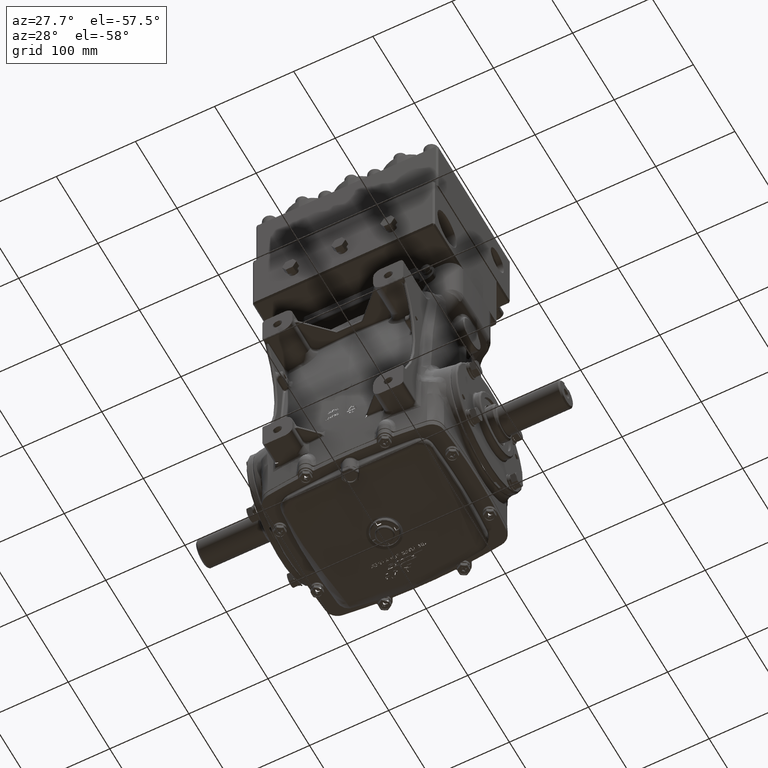
[diagram: clean part render]
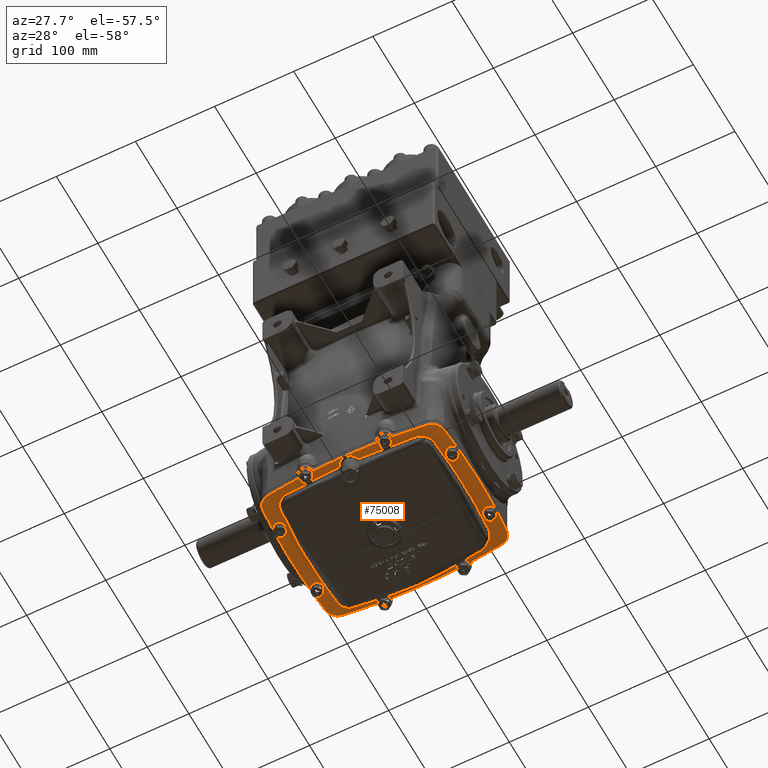
[diagram: same view with one face highlighted and labeled with its STEP entity id]
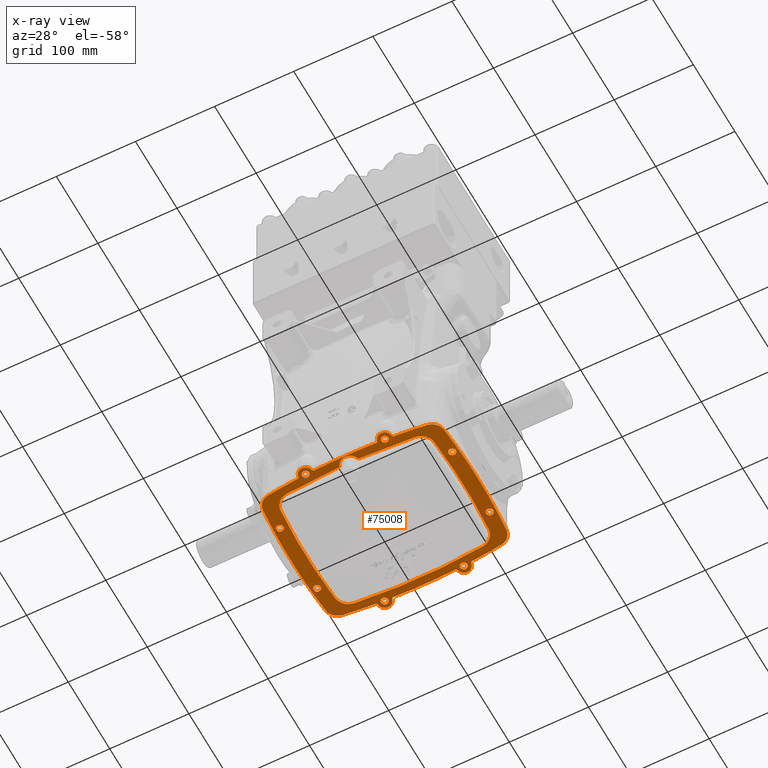
[diagram: x-ray of the same camera — body ghosted, the highlighted face saturated]
A machine part, auxiliary view. The second image highlights one B-rep face of the part: STEP entity #75008.
The next image is the same camera in x-ray: the body ghosted, the highlighted face saturated — about 0% of this face is hidden behind the body in this view.
In plain terms, the highlighted planar face has unit normal (0, 0, -1).
Its self-contained STEP definition (entity closure, byte-faithful):
#76 = CARTESIAN_POINT ( 'NONE',  ( -2.400750404116022807, -3.766866407161153951, -3.779527559055118502 ) ) ;
#201 = AXIS2_PLACEMENT_3D ( 'NONE', #107540, #23701, #61000 ) ;
#813 = EDGE_CURVE ( 'NONE', #5425, #76926, #15322, .T. ) ;
#1115 = EDGE_LOOP ( 'NONE', ( #116488, #70390 ) ) ;
#1201 = ORIENTED_EDGE ( 'NONE', *, *, #38302, .F. ) ;
#1335 = CARTESIAN_POINT ( 'NONE',  ( 0.06538660321074299397, -3.736921387958513918, -3.779527559055118502 ) ) ;
#1485 = VERTEX_POINT ( 'NONE', #67532 ) ;
#1623 = AXIS2_PLACEMENT_3D ( 'NONE', #30510, #67799, #105153 ) ;
#1778 = DIRECTION ( 'NONE',  ( 0.0000000000000000000, -0.0000000000000000000, 1.000000000000000000 ) ) ;
#1806 = CARTESIAN_POINT ( 'NONE',  ( -4.114173228346457378, 1.771653543307086132, -3.779527559055118502 ) ) ;
#1928 = CARTESIAN_POINT ( 'NONE',  ( 0.4226106169897367870, -3.480481013810819313, -3.779527559055118946 ) ) ;
#2549 = CARTESIAN_POINT ( 'NONE',  ( 1.968503937007874738, 3.740157480314960647, -3.779527559055118502 ) ) ;
#2755 = AXIS2_PLACEMENT_3D ( 'NONE', #16095, #53381, #90730 ) ;
#2765 = CARTESIAN_POINT ( 'NONE',  ( 2.394763495377579599, -3.688354183120671426, -3.779527559055118502 ) ) ;
#2928 = CIRCLE ( 'NONE', #71287, 0.1771653543307088186 ) ;
#3237 = CIRCLE ( 'NONE', #71598, 31.49606299212598515 ) ;
#3255 = DIRECTION ( 'NONE',  ( 0.0000000000000000000, 0.0000000000000000000, -1.000000000000000000 ) ) ;
#3360 = VERTEX_POINT ( 'NONE', #53564 ) ;
#3423 = CARTESIAN_POINT ( 'NONE',  ( 1.538576790031713226E-15, -27.71653543307087375, -3.779527559055118502 ) ) ;
#3603 = EDGE_CURVE ( 'NONE', #100789, #15759, #34915, .T. ) ;
#3770 = ORIENTED_EDGE ( 'NONE', *, *, #78932, .T. ) ;
#4044 = CARTESIAN_POINT ( 'NONE',  ( -2.145669291338583751, -3.740157480314962868, -3.779527559055118502 ) ) ;
#4102 = DIRECTION ( 'NONE',  ( 0.0000000000000000000, 0.0000000000000000000, -1.000000000000000000 ) ) ;
#4207 = CIRCLE ( 'NONE', #72579, 0.6299212598425202314 ) ;
#4219 = AXIS2_PLACEMENT_3D ( 'NONE', #72732, #110098, #26277 ) ;
#4230 = DIRECTION ( 'NONE',  ( 1.000000000000000000, 8.826273045769992919E-15, 0.0000000000000000000 ) ) ;
#4328 = VERTEX_POINT ( 'NONE', #23593 ) ;
#4496 = DIRECTION ( 'NONE',  ( 0.0000000000000000000, -0.0000000000000000000, 1.000000000000000000 ) ) ;
#4544 = CIRCLE ( 'NONE', #72927, 0.1771653543307088186 ) ;
#4785 = CARTESIAN_POINT ( 'NONE',  ( 2.145669291338583751, 3.740157480314960647, -3.779527559055118502 ) ) ;
#5053 = EDGE_CURVE ( 'NONE', #61722, #118301, #59996, .T. ) ;
#5113 = CIRCLE ( 'NONE', #73497, 0.6299212598425196763 ) ;
#5389 = ORIENTED_EDGE ( 'NONE', *, *, #91449, .T. ) ;
#5425 = VERTEX_POINT ( 'NONE', #44415 ) ;
#5453 = DIRECTION ( 'NONE',  ( -1.000000000000000000, 0.0000000000000000000, 0.0000000000000000000 ) ) ;
#5864 = AXIS2_PLACEMENT_3D ( 'NONE', #64719, #102059, #18203 ) ;
#6010 = DIRECTION ( 'NONE',  ( 1.000000000000000000, 0.0000000000000000000, 0.0000000000000000000 ) ) ;
#6536 = AXIS2_PLACEMENT_3D ( 'NONE', #8578, #45877, #83206 ) ;
#6568 = VERTEX_POINT ( 'NONE', #78544 ) ;
#6717 = CIRCLE ( 'NONE', #75053, 0.07874015748031502893 ) ;
#7113 = ORIENTED_EDGE ( 'NONE', *, *, #59056, .T. ) ;
#7424 = EDGE_LOOP ( 'NONE', ( #7846, #12635 ) ) ;
#7720 = EDGE_CURVE ( 'NONE', #49671, #22721, #103640, .T. ) ;
#7846 = ORIENTED_EDGE ( 'NONE', *, *, #88059, .F. ) ;
#8155 = EDGE_CURVE ( 'NONE', #65600, #48063, #89512, .T. ) ;
#8233 = CIRCLE ( 'NONE', #23821, 0.3543307086614176371 ) ;
#8437 = FACE_BOUND ( 'NONE', #50660, .T. ) ;
#8578 = CARTESIAN_POINT ( 'NONE',  ( -1.968503937007874960, -3.740157480314962868, -3.779527559055118502 ) ) ;
#9028 = EDGE_CURVE ( 'NONE', #71179, #49232, #83529, .T. ) ;
#9126 = DIRECTION ( 'NONE',  ( 1.000000000000000000, 0.0000000000000000000, 0.0000000000000000000 ) ) ;
#9262 = VERTEX_POINT ( 'NONE', #39171 ) ;
#9470 = CIRCLE ( 'NONE', #77810, 0.07874015748031502893 ) ;
#9696 = VERTEX_POINT ( 'NONE', #22455 ) ;
#9750 = ORIENTED_EDGE ( 'NONE', *, *, #102338, .T. ) ;
#9821 = CARTESIAN_POINT ( 'NONE',  ( -3.829085541406587634, 2.575587147812980593, -3.779527559055118502 ) ) ;
#9852 = EDGE_CURVE ( 'NONE', #93228, #19043, #54110, .T. ) ;
#10215 = DIRECTION ( 'NONE',  ( -0.0000000000000000000, -0.0000000000000000000, 1.000000000000000000 ) ) ;
#10792 = DIRECTION ( 'NONE',  ( -1.000000000000000000, 0.0000000000000000000, 0.0000000000000000000 ) ) ;
#10889 = CIRCLE ( 'NONE', #79209, 31.10236220472442170 ) ;
#10919 = AXIS2_PLACEMENT_3D ( 'NONE', #38712, #76007, #113378 ) ;
#10934 = CARTESIAN_POINT ( 'NONE',  ( 1.542959402944847680, 3.820545443529810736, -3.779527559055118502 ) ) ;
#11129 = CARTESIAN_POINT ( 'NONE',  ( 0.3658364340370212076, -3.567781174913059683, -3.779527559055119390 ) ) ;
#11355 = VERTEX_POINT ( 'NONE', #35637 ) ;
#11457 = ORIENTED_EDGE ( 'NONE', *, *, #97707, .F. ) ;
#11464 = AXIS2_PLACEMENT_3D ( 'NONE', #50678, #88021, #4230 ) ;
#11796 = DIRECTION ( 'NONE',  ( 0.0000000000000000000, -0.0000000000000000000, 1.000000000000000000 ) ) ;
#11849 = VERTEX_POINT ( 'NONE', #4785 ) ;
#12072 = CARTESIAN_POINT ( 'NONE',  ( -3.122908269847139984, 2.516302533157439569, -3.779527559055118502 ) ) ;
#12096 = CARTESIAN_POINT ( 'NONE',  ( -3.957905272260127116, 3.529855876323303665, -3.779527559055118502 ) ) ;
#12229 = VERTEX_POINT ( 'NONE', #4044 ) ;
#12281 = DIRECTION ( 'NONE',  ( 0.0000000000000000000, -0.0000000000000000000, 1.000000000000000000 ) ) ;
#12518 = VERTEX_POINT ( 'NONE', #40007 ) ;
#12635 = ORIENTED_EDGE ( 'NONE', *, *, #81078, .F. ) ;
#12719 = CARTESIAN_POINT ( 'NONE',  ( -3.195722193237359399, 3.221213262939959687, -3.779527559055118502 ) ) ;
#12740 = EDGE_CURVE ( 'NONE', #82973, #12229, #112054, .T. ) ;
#12894 = ORIENTED_EDGE ( 'NONE', *, *, #90740, .F. ) ;
#12971 = CARTESIAN_POINT ( 'NONE',  ( -0.4449892483073611404, -3.435609528206091223, -3.779527559055117170 ) ) ;
#13040 = DIRECTION ( 'NONE',  ( -1.000000000000000000, 0.0000000000000000000, 0.0000000000000000000 ) ) ;
#13477 = DIRECTION ( 'NONE',  ( -0.0000000000000000000, -0.0000000000000000000, 1.000000000000000000 ) ) ;
#13482 = AXIS2_PLACEMENT_3D ( 'NONE', #57248, #94601, #10792 ) ;
#13514 = CARTESIAN_POINT ( 'NONE',  ( 26.85039370078740717, -2.583235462808927173E-15, -3.779527559055118502 ) ) ;
#13530 = DIRECTION ( 'NONE',  ( -1.000000000000000000, 0.0000000000000000000, 0.0000000000000000000 ) ) ;
#13797 = AXIS2_PLACEMENT_3D ( 'NONE', #44256, #81569, #118925 ) ;
#14088 = ORIENTED_EDGE ( 'NONE', *, *, #813, .F. ) ;
#14580 = EDGE_CURVE ( 'NONE', #70969, #9696, #71106, .T. ) ;
#14706 = CARTESIAN_POINT ( 'NONE',  ( -1.968503937007875182, 3.740157480314960647, -3.779527559055118502 ) ) ;
#15000 = VERTEX_POINT ( 'NONE', #48146 ) ;
#15247 = CARTESIAN_POINT ( 'NONE',  ( -2.145669291338584195, 3.740157480314960647, -3.779527559055118502 ) ) ;
#15322 = CIRCLE ( 'NONE', #28098, 0.3543307086614176371 ) ;
#15696 = EDGE_CURVE ( 'NONE', #91631, #11355, #84648, .T. ) ;
#15733 = ORIENTED_EDGE ( 'NONE', *, *, #48098, .T. ) ;
#15759 = VERTEX_POINT ( 'NONE', #36892 ) ;
#15865 = VERTEX_POINT ( 'NONE', #100623 ) ;
#16085 = CIRCLE ( 'NONE', #84444, 0.07874015748031502893 ) ;
#16095 = CARTESIAN_POINT ( 'NONE',  ( -4.291338582677165725, 1.771653543307086132, -3.779527559055118502 ) ) ;
#16228 = ORIENTED_EDGE ( 'NONE', *, *, #26712, .F. ) ;
#16375 = VERTEX_POINT ( 'NONE', #12719 ) ;
#16485 = ORIENTED_EDGE ( 'NONE', *, *, #113359, .T. ) ;
#16965 = CARTESIAN_POINT ( 'NONE',  ( 3.122908269847139984, 2.516302533157439569, -3.779527559055118502 ) ) ;
#17028 = EDGE_CURVE ( 'NONE', #29531, #71479, #63028, .T. ) ;
#17188 = AXIS2_PLACEMENT_3D ( 'NONE', #19624, #56920, #94272 ) ;
#17264 = DIRECTION ( 'NONE',  ( 0.0000000000000000000, 0.0000000000000000000, -1.000000000000000000 ) ) ;
#17628 = FACE_BOUND ( 'NONE', #48241, .T. ) ;
#17873 = DIRECTION ( 'NONE',  ( 0.0000000000000000000, -0.0000000000000000000, 1.000000000000000000 ) ) ;
#18129 = EDGE_CURVE ( 'NONE', #29860, #104750, #111384, .T. ) ;
#18203 = DIRECTION ( 'NONE',  ( -1.000000000000000000, 5.551115123125781470E-17, 0.0000000000000000000 ) ) ;
#18960 = ORIENTED_EDGE ( 'NONE', *, *, #17028, .F. ) ;
#19043 = VERTEX_POINT ( 'NONE', #22925 ) ;
#19061 = ORIENTED_EDGE ( 'NONE', *, *, #41225, .F. ) ;
#19267 = DIRECTION ( 'NONE',  ( 0.0000000000000000000, 0.0000000000000000000, -1.000000000000000000 ) ) ;
#19603 = EDGE_CURVE ( 'NONE', #86963, #5425, #59653, .T. ) ;
#19624 = CARTESIAN_POINT ( 'NONE',  ( -1.542959402944848346, 3.820545443529810736, -3.779527559055118502 ) ) ;
#19689 = AXIS2_PLACEMENT_3D ( 'NONE', #30278, #67578, #104931 ) ;
#19881 = DIRECTION ( 'NONE',  ( 0.0000000000000000000, 0.0000000000000000000, -1.000000000000000000 ) ) ;
#20209 = CARTESIAN_POINT ( 'NONE',  ( 0.4582975748844623776, -3.382450049525253633, -3.779527559055118502 ) ) ;
#20272 = CARTESIAN_POINT ( 'NONE',  ( 0.2701142151827755633, -3.656204280754478120, -3.779527559055118946 ) ) ;
#20412 = DIRECTION ( 'NONE',  ( -0.0000000000000000000, 0.0000000000000000000, -1.000000000000000000 ) ) ;
#21687 = DIRECTION ( 'NONE',  ( -0.0000000000000000000, -0.0000000000000000000, 1.000000000000000000 ) ) ;
#21749 = EDGE_CURVE ( 'NONE', #34597, #26982, #48535, .T. ) ;
#22116 = CARTESIAN_POINT ( 'NONE',  ( -0.3224741472592902447, -3.617306643913386743, -3.779527559055117170 ) ) ;
#22325 = EDGE_CURVE ( 'NONE', #52170, #89442, #39192, .T. ) ;
#22455 = CARTESIAN_POINT ( 'NONE',  ( -4.468503937007874960, 1.771653543307086132, -3.779527559055118502 ) ) ;
#22721 = VERTEX_POINT ( 'NONE', #60491 ) ;
#22925 = CARTESIAN_POINT ( 'NONE',  ( 3.195722193237359399, 3.221213262939959687, -3.779527559055118502 ) ) ;
#22981 = DIRECTION ( 'NONE',  ( 1.000000000000000000, 0.0000000000000000000, 0.0000000000000000000 ) ) ;
#23125 = ORIENTED_EDGE ( 'NONE', *, *, #119846, .F. ) ;
#23593 = CARTESIAN_POINT ( 'NONE',  ( 1.539111623885135449, -3.741899356555741019, -3.779527559055118502 ) ) ;
#23701 = DIRECTION ( 'NONE',  ( 0.0000000000000000000, 0.0000000000000000000, -1.000000000000000000 ) ) ;
#23780 = CARTESIAN_POINT ( 'NONE',  ( 1.968503937007875626, -3.740157480314962868, -3.779527559055118502 ) ) ;
#23821 = AXIS2_PLACEMENT_3D ( 'NONE', #2549, #39860, #77174 ) ;
#24011 = CIRCLE ( 'NONE', #92433, 0.7086614173228298341 ) ;
#24705 = DIRECTION ( 'NONE',  ( -0.0000000000000000000, 0.0000000000000000000, -1.000000000000000000 ) ) ;
#24794 = ORIENTED_EDGE ( 'NONE', *, *, #22325, .T. ) ;
#25165 = ORIENTED_EDGE ( 'NONE', *, *, #18129, .T. ) ;
#25827 = DIRECTION ( 'NONE',  ( 1.000000000000000000, 0.0000000000000000000, 0.0000000000000000000 ) ) ;
#26037 = CIRCLE ( 'NONE', #94404, 0.1771653543307088186 ) ;
#26277 = DIRECTION ( 'NONE',  ( -1.000000000000000000, 0.0000000000000000000, 0.0000000000000000000 ) ) ;
#26712 = EDGE_CURVE ( 'NONE', #45197, #51666, #43123, .T. ) ;
#26982 = VERTEX_POINT ( 'NONE', #9821 ) ;
#27007 = VERTEX_POINT ( 'NONE', #113231 ) ;
#27098 = EDGE_LOOP ( 'NONE', ( #11457, #45576 ) ) ;
#27199 = CARTESIAN_POINT ( 'NONE',  ( -1.372552626980608093, -3.368976913240570692, -3.779527559055117614 ) ) ;
#27306 = CIRCLE ( 'NONE', #95670, 0.1771653543307088186 ) ;
#27360 = CARTESIAN_POINT ( 'NONE',  ( -2.394763495377578710, -3.688354183120671426, -3.779527559055118502 ) ) ;
#27416 = PLANE ( 'NONE',  #5864 ) ;
#27460 = VERTEX_POINT ( 'NONE', #108727 ) ;
#27482 = CARTESIAN_POINT ( 'NONE',  ( 3.195722193237373610, -3.221213262939961464, -3.779527559055118502 ) ) ;
#28098 = AXIS2_PLACEMENT_3D ( 'NONE', #85570, #1778, #39095 ) ;
#28981 = DIRECTION ( 'NONE',  ( -0.0000000000000000000, -0.0000000000000000000, 1.000000000000000000 ) ) ;
#29480 = CARTESIAN_POINT ( 'NONE',  ( 0.1783871908584025723, -3.705951099631915380, -3.779527559055117614 ) ) ;
#29531 = VERTEX_POINT ( 'NONE', #40063 ) ;
#29860 = VERTEX_POINT ( 'NONE', #15247 ) ;
#30192 = ORIENTED_EDGE ( 'NONE', *, *, #67330, .T. ) ;
#30215 = AXIS2_PLACEMENT_3D ( 'NONE', #59742, #4102, #41401 ) ;
#30278 = CARTESIAN_POINT ( 'NONE',  ( 3.878747166814916270, -2.904928050135424655, -3.779527559055118502 ) ) ;
#30510 = CARTESIAN_POINT ( 'NONE',  ( -2.400750404116023251, 3.766866407161151731, -3.779527559055118502 ) ) ;
#31311 = CARTESIAN_POINT ( 'NONE',  ( -0.08870878203381653282, -3.733869718406637173, -3.779527559055118502 ) ) ;
#31469 = VERTEX_POINT ( 'NONE', #53373 ) ;
#31934 = CARTESIAN_POINT ( 'NONE',  ( 1.968503937007874738, 3.740157480314960647, -3.779527559055118502 ) ) ;
#32185 = DIRECTION ( 'NONE',  ( -1.000000000000000000, 0.0000000000000000000, 0.0000000000000000000 ) ) ;
#32678 = AXIS2_PLACEMENT_3D ( 'NONE', #60002, #97348, #13530 ) ;
#32867 = CARTESIAN_POINT ( 'NONE',  ( 4.468503937007874960, 1.771653543307085465, -3.779527559055118502 ) ) ;
#33517 = CIRCLE ( 'NONE', #101953, 0.1771653543307088186 ) ;
#34360 = DIRECTION ( 'NONE',  ( 0.0000000000000000000, -0.0000000000000000000, 1.000000000000000000 ) ) ;
#34503 = B_SPLINE_CURVE_WITH_KNOTS ( 'NONE', 3,
 ( #47811, #85121, #1335, #38652, #75945, #113317, #29480, #66776, #104124, #20272, #57587, #94952, #11129, #48412, #85728, #1928, #39248, #76548, #113908 ),
 .UNSPECIFIED., .F., .F.,
 ( 4, 1, 2, 2, 2, 2, 2, 2, 2, 4 ),
 ( 0.0000000000000000000, 0.1250000000000003608, 0.1875000000000003053, 0.2500000000000002776, 0.3750000000000002776, 0.5000000000000003331, 0.6250000000000002220, 0.7500000000000001110, 0.8750000000000001110, 1.000000000000000000 ),
 .UNSPECIFIED. ) ;
#34510 = AXIS2_PLACEMENT_3D ( 'NONE', #59491, #96849, #13040 ) ;
#34597 = VERTEX_POINT ( 'NONE', #87396 ) ;
#34753 = ORIENTED_EDGE ( 'NONE', *, *, #87581, .F. ) ;
#34915 = CIRCLE ( 'NONE', #111093, 0.07874015748031502893 ) ;
#35637 = CARTESIAN_POINT ( 'NONE',  ( 1.791338582677166613, -3.740157480314962868, -3.779527559055118502 ) ) ;
#35685 = DIRECTION ( 'NONE',  ( -1.000000000000000000, 0.0000000000000000000, 0.0000000000000000000 ) ) ;
#35850 = DIRECTION ( 'NONE',  ( 0.0000000000000000000, 0.0000000000000000000, -1.000000000000000000 ) ) ;
#36064 = EDGE_CURVE ( 'NONE', #118301, #61722, #107637, .T. ) ;
#36578 = FACE_BOUND ( 'NONE', #1115, .T. ) ;
#36616 = CARTESIAN_POINT ( 'NONE',  ( 4.114173228346457378, 1.771653543307085465, -3.779527559055118502 ) ) ;
#36645 = CARTESIAN_POINT ( 'NONE',  ( 0.4582975748844623776, -3.382450049525253633, -3.779527559055118502 ) ) ;
#36713 = CIRCLE ( 'NONE', #120773, 30.78740157480315887 ) ;
#36892 = CARTESIAN_POINT ( 'NONE',  ( 2.322160137369087884, -3.762010238643664906, -3.779527559055118502 ) ) ;
#37147 = ORIENTED_EDGE ( 'NONE', *, *, #39184, .F. ) ;
#37321 = CIRCLE ( 'NONE', #201, 0.1771653543307088186 ) ;
#37400 = DIRECTION ( 'NONE',  ( -0.0000000000000000000, 0.0000000000000000000, -1.000000000000000000 ) ) ;
#37429 = CARTESIAN_POINT ( 'NONE',  ( -1.538576790031713226E-15, 27.71653543307087375, -3.779527559055118502 ) ) ;
#38302 = EDGE_CURVE ( 'NONE', #71479, #29531, #37321, .T. ) ;
#38652 = CARTESIAN_POINT ( 'NONE',  ( 0.1035239416555515934, -3.728894028836394092, -3.779527559055119390 ) ) ;
#38712 = CARTESIAN_POINT ( 'NONE',  ( 26.85039370078740717, -2.583235462808927173E-15, -3.779527559055118502 ) ) ;
#39095 = DIRECTION ( 'NONE',  ( 1.000000000000000000, 0.0000000000000000000, 0.0000000000000000000 ) ) ;
#39171 = CARTESIAN_POINT ( 'NONE',  ( -1.539111623885135005, -3.741899356555741019, -3.779527559055118502 ) ) ;
#39184 = EDGE_CURVE ( 'NONE', #51666, #62859, #56946, .T. ) ;
#39192 = CIRCLE ( 'NONE', #107573, 31.49606299212598515 ) ;
#39238 = EDGE_CURVE ( 'NONE', #82396, #3360, #109065, .T. ) ;
#39248 = CARTESIAN_POINT ( 'NONE',  ( 0.4435521927738468873, -3.432440546093950662, -3.779527559055118502 ) ) ;
#39812 = ORIENTED_EDGE ( 'NONE', *, *, #21749, .F. ) ;
#39860 = DIRECTION ( 'NONE',  ( 0.0000000000000000000, 0.0000000000000000000, -1.000000000000000000 ) ) ;
#40007 = CARTESIAN_POINT ( 'NONE',  ( -4.505872490643534789, -2.964212296056555562, -3.779527559055118502 ) ) ;
#40063 = CARTESIAN_POINT ( 'NONE',  ( 4.468503937007874960, -1.771653543307088130, -3.779527559055118502 ) ) ;
#40557 = DIRECTION ( 'NONE',  ( -1.000000000000000000, 5.551115123125782086E-17, 0.0000000000000000000 ) ) ;
#40731 = DIRECTION ( 'NONE',  ( -0.0000000000000000000, -0.0000000000000000000, 1.000000000000000000 ) ) ;
#41225 = EDGE_CURVE ( 'NONE', #15000, #34597, #24011, .T. ) ;
#41401 = DIRECTION ( 'NONE',  ( -1.000000000000000000, 0.0000000000000000000, 0.0000000000000000000 ) ) ;
#41431 = EDGE_CURVE ( 'NONE', #31469, #100789, #43594, .T. ) ;
#41690 = AXIS2_PLACEMENT_3D ( 'NONE', #50524, #116031, #32185 ) ;
#41802 = DIRECTION ( 'NONE',  ( 1.000000000000000000, 0.0000000000000000000, 0.0000000000000000000 ) ) ;
#41907 = ORIENTED_EDGE ( 'NONE', *, *, #48058, .T. ) ;
#41928 = ORIENTED_EDGE ( 'NONE', *, *, #109581, .F. ) ;
#42310 = AXIS2_PLACEMENT_3D ( 'NONE', #45258, #82572, #119935 ) ;
#43072 = AXIS2_PLACEMENT_3D ( 'NONE', #103095, #19267, #56561 ) ;
#43123 = CIRCLE ( 'NONE', #99839, 31.49606299212599581 ) ;
#43594 = CIRCLE ( 'NONE', #112017, 31.49606299212599581 ) ;
#44256 = CARTESIAN_POINT ( 'NONE',  ( -1.538576790031713226E-15, 27.71653543307087375, -3.779527559055118502 ) ) ;
#44415 = CARTESIAN_POINT ( 'NONE',  ( -2.322160137369086996, -3.762010238643664906, -3.779527559055118502 ) ) ;
#45197 = VERTEX_POINT ( 'NONE', #47921 ) ;
#45258 = CARTESIAN_POINT ( 'NONE',  ( 1.968503937007874738, 3.740157480314960647, -3.779527559055118502 ) ) ;
#45576 = ORIENTED_EDGE ( 'NONE', *, *, #15696, .F. ) ;
#45731 = FACE_BOUND ( 'NONE', #7424, .T. ) ;
#45877 = DIRECTION ( 'NONE',  ( 0.0000000000000000000, -0.0000000000000000000, 1.000000000000000000 ) ) ;
#46764 = ORIENTED_EDGE ( 'NONE', *, *, #89910, .F. ) ;
#47508 = DIRECTION ( 'NONE',  ( -1.000000000000000000, 8.937295348232510150E-15, 0.0000000000000000000 ) ) ;
#47811 = CARTESIAN_POINT ( 'NONE',  ( 1.100012960089071035E-15, -3.740150812782149448, -3.779527559055118502 ) ) ;
#47886 = AXIS2_PLACEMENT_3D ( 'NONE', #76, #37400, #74688 ) ;
#47921 = CARTESIAN_POINT ( 'NONE',  ( -2.394763495377579154, 3.688354183120669205, -3.779527559055118502 ) ) ;
#48058 = EDGE_CURVE ( 'NONE', #89442, #15865, #3237, .T. ) ;
#48063 = VERTEX_POINT ( 'NONE', #77854 ) ;
#48098 = EDGE_CURVE ( 'NONE', #3360, #87407, #87225, .T. ) ;
#48146 = CARTESIAN_POINT ( 'NONE',  ( -3.195722193237373610, -3.221213262939961464, -3.779527559055118502 ) ) ;
#48219 = DIRECTION ( 'NONE',  ( -0.0000000000000000000, -0.0000000000000000000, 1.000000000000000000 ) ) ;
#48241 = EDGE_LOOP ( 'NONE', ( #83728, #16485, #113119, #15733, #70145, #96845, #30192, #51494, #39812, #19061, #12894 ) ) ;
#48333 = AXIS2_PLACEMENT_3D ( 'NONE', #118195, #34360, #71656 ) ;
#48412 = CARTESIAN_POINT ( 'NONE',  ( 0.3818157208930982871, -3.547179397492220776, -3.779527559055118946 ) ) ;
#48535 = CIRCLE ( 'NONE', #11464, 30.78740157480315887 ) ;
#48575 = CIRCLE ( 'NONE', #64247, 0.1771653543307088186 ) ;
#48627 = CARTESIAN_POINT ( 'NONE',  ( 4.505872490643538342, 2.964212296056546680, -3.779527559055118502 ) ) ;
#49068 = DIRECTION ( 'NONE',  ( 1.000000000000000000, 0.0000000000000000000, 0.0000000000000000000 ) ) ;
#49232 = VERTEX_POINT ( 'NONE', #63032 ) ;
#49343 = DIRECTION ( 'NONE',  ( -0.0000000000000000000, 0.0000000000000000000, -1.000000000000000000 ) ) ;
#49426 = ORIENTED_EDGE ( 'NONE', *, *, #62521, .T. ) ;
#49549 = DIRECTION ( 'NONE',  ( 1.000000000000000000, 0.0000000000000000000, 0.0000000000000000000 ) ) ;
#49671 = VERTEX_POINT ( 'NONE', #84826 ) ;
#50244 = CARTESIAN_POINT ( 'NONE',  ( -0.4582975748844619335, -3.382450049525253633, -3.779527559055118502 ) ) ;
#50346 = AXIS2_PLACEMENT_3D ( 'NONE', #13514, #50791, #88140 ) ;
#50524 = CARTESIAN_POINT ( 'NONE',  ( 1.538576790031713226E-15, -27.71653543307087375, -3.779527559055118502 ) ) ;
#50533 = ORIENTED_EDGE ( 'NONE', *, *, #12740, .T. ) ;
#50609 = ORIENTED_EDGE ( 'NONE', *, *, #77623, .T. ) ;
#50660 = EDGE_LOOP ( 'NONE', ( #117989, #61043 ) ) ;
#50678 = CARTESIAN_POINT ( 'NONE',  ( 26.85039370078740717, -2.583235462808927173E-15, -3.779527559055118502 ) ) ;
#50754 = DIRECTION ( 'NONE',  ( -1.000000000000000000, 0.0000000000000000000, 0.0000000000000000000 ) ) ;
#50791 = DIRECTION ( 'NONE',  ( 0.0000000000000000000, -0.0000000000000000000, 1.000000000000000000 ) ) ;
#51238 = CARTESIAN_POINT ( 'NONE',  ( -1.620331136410853023, -3.805929450218021870, -3.779527559055118502 ) ) ;
#51494 = ORIENTED_EDGE ( 'NONE', *, *, #57219, .F. ) ;
#51546 = CARTESIAN_POINT ( 'NONE',  ( -4.114173228346457378, -1.771653543307087686, -3.779527559055118502 ) ) ;
#51666 = VERTEX_POINT ( 'NONE', #12096 ) ;
#51932 = VERTEX_POINT ( 'NONE', #81155 ) ;
#51990 = DIRECTION ( 'NONE',  ( 0.0000000000000000000, -0.0000000000000000000, 1.000000000000000000 ) ) ;
#52170 = VERTEX_POINT ( 'NONE', #48627 ) ;
#52236 = AXIS2_PLACEMENT_3D ( 'NONE', #112818, #28981, #66282 ) ;
#52463 = CARTESIAN_POINT ( 'NONE',  ( -4.291338582677166613, -1.771653543307087686, -3.779527559055118502 ) ) ;
#53373 = CARTESIAN_POINT ( 'NONE',  ( 3.957905272260133778, -3.529855876323304109, -3.779527559055118502 ) ) ;
#53381 = DIRECTION ( 'NONE',  ( 0.0000000000000000000, -0.0000000000000000000, 1.000000000000000000 ) ) ;
#53564 = CARTESIAN_POINT ( 'NONE',  ( 3.195722193237373610, -3.221213262939961464, -3.779527559055118502 ) ) ;
#54110 = CIRCLE ( 'NONE', #105456, 0.7086614173228298341 ) ;
#54248 = DIRECTION ( 'NONE',  ( -0.0000000000000000000, -0.0000000000000000000, 1.000000000000000000 ) ) ;
#54276 = CIRCLE ( 'NONE', #17188, 0.07874015748031502893 ) ;
#54368 = CIRCLE ( 'NONE', #1623, 0.07874015748031502893 ) ;
#54556 = DIRECTION ( 'NONE',  ( -1.000000000000000000, 0.0000000000000000000, 0.0000000000000000000 ) ) ;
#54876 = AXIS2_PLACEMENT_3D ( 'NONE', #103734, #19881, #57187 ) ;
#54914 = FACE_OUTER_BOUND ( 'NONE', #112371, .T. ) ;
#55164 = DIRECTION ( 'NONE',  ( 1.000000000000000000, 0.0000000000000000000, 0.0000000000000000000 ) ) ;
#55588 = CARTESIAN_POINT ( 'NONE',  ( 3.878747166814924707, 2.904928050135420214, -3.779527559055118502 ) ) ;
#55892 = CARTESIAN_POINT ( 'NONE',  ( -1.791338582677166169, -3.740157480314962868, -3.779527559055118502 ) ) ;
#55905 = EDGE_CURVE ( 'NONE', #27460, #56613, #48575, .T. ) ;
#56561 = DIRECTION ( 'NONE',  ( -1.000000000000000000, 0.0000000000000000000, 0.0000000000000000000 ) ) ;
#56613 = VERTEX_POINT ( 'NONE', #51546 ) ;
#56920 = DIRECTION ( 'NONE',  ( -0.0000000000000000000, 0.0000000000000000000, -1.000000000000000000 ) ) ;
#56946 = CIRCLE ( 'NONE', #4219, 0.6299212598425202314 ) ;
#57187 = DIRECTION ( 'NONE',  ( -1.000000000000000000, 0.0000000000000000000, 0.0000000000000000000 ) ) ;
#57219 = EDGE_CURVE ( 'NONE', #26982, #16375, #112981, .T. ) ;
#57248 = CARTESIAN_POINT ( 'NONE',  ( -1.538576790031713226E-15, 27.71653543307087375, -3.779527559055118502 ) ) ;
#57330 = AXIS2_PLACEMENT_3D ( 'NONE', #82182, #119530, #35685 ) ;
#57587 = CARTESIAN_POINT ( 'NONE',  ( 0.3112516291922409195, -3.624082812537250842, -3.779527559055118502 ) ) ;
#57610 = EDGE_CURVE ( 'NONE', #76926, #9262, #9470, .T. ) ;
#57724 = DIRECTION ( 'NONE',  ( 1.000000000000000000, 1.541976423090505691E-15, 0.0000000000000000000 ) ) ;
#58621 = CARTESIAN_POINT ( 'NONE',  ( -4.505872490643538342, 2.964212296056546680, -3.779527559055118502 ) ) ;
#58974 = DIRECTION ( 'NONE',  ( -1.000000000000000000, 0.0000000000000000000, 0.0000000000000000000 ) ) ;
#59056 = EDGE_CURVE ( 'NONE', #56613, #27460, #27306, .T. ) ;
#59420 = CARTESIAN_POINT ( 'NONE',  ( -0.3610820585793447224, -3.577268738736739895, -3.779527559055118502 ) ) ;
#59491 = CARTESIAN_POINT ( 'NONE',  ( 3.122908269847139984, -2.516302533157441790, -3.779527559055118502 ) ) ;
#59653 = CIRCLE ( 'NONE', #47886, 0.07874015748031502893 ) ;
#59742 = CARTESIAN_POINT ( 'NONE',  ( 1.968503937007875626, -3.740157480314962868, -3.779527559055118502 ) ) ;
#59996 = CIRCLE ( 'NONE', #32678, 0.1771653543307088186 ) ;
#60002 = CARTESIAN_POINT ( 'NONE',  ( 4.291338582677165725, 1.771653543307085465, -3.779527559055118502 ) ) ;
#60157 = AXIS2_PLACEMENT_3D ( 'NONE', #12072, #49343, #86651 ) ;
#60194 = EDGE_CURVE ( 'NONE', #101985, #6568, #95847, .T. ) ;
#60486 = EDGE_CURVE ( 'NONE', #65261, #86963, #66559, .T. ) ;
#60491 = CARTESIAN_POINT ( 'NONE',  ( 3.957905272260127116, 3.529855876323303665, -3.779527559055118502 ) ) ;
#61000 = DIRECTION ( 'NONE',  ( -1.000000000000000000, 0.0000000000000000000, 0.0000000000000000000 ) ) ;
#61043 = ORIENTED_EDGE ( 'NONE', *, *, #5053, .F. ) ;
#61418 = AXIS2_PLACEMENT_3D ( 'NONE', #101106, #17264, #54556 ) ;
#61529 = EDGE_CURVE ( 'NONE', #22721, #52170, #4207, .T. ) ;
#61722 = VERTEX_POINT ( 'NONE', #32867 ) ;
#61990 = DIRECTION ( 'NONE',  ( 1.000000000000000000, 0.0000000000000000000, 0.0000000000000000000 ) ) ;
#62521 = EDGE_CURVE ( 'NONE', #51932, #49671, #16085, .T. ) ;
#62699 = AXIS2_PLACEMENT_3D ( 'NONE', #23780, #89251, #5453 ) ;
#62859 = VERTEX_POINT ( 'NONE', #58621 ) ;
#63028 = CIRCLE ( 'NONE', #61418, 0.1771653543307088186 ) ;
#63032 = CARTESIAN_POINT ( 'NONE',  ( -2.322160137369086996, 3.762010238643662685, -3.779527559055118502 ) ) ;
#63656 = CIRCLE ( 'NONE', #10919, 31.49606299212598515 ) ;
#64247 = AXIS2_PLACEMENT_3D ( 'NONE', #52463, #89812, #6010 ) ;
#64364 = EDGE_CURVE ( 'NONE', #9696, #70969, #2928, .T. ) ;
#64498 = CARTESIAN_POINT ( 'NONE',  ( -2.286207216884006410, -3.315161831100217338, -3.779527559055117170 ) ) ;
#64719 = CARTESIAN_POINT ( 'NONE',  ( 1.538576790031713226E-15, -27.71653543307087375, -3.779527559055118502 ) ) ;
#65261 = VERTEX_POINT ( 'NONE', #108436 ) ;
#65600 = VERTEX_POINT ( 'NONE', #78888 ) ;
#66234 = CIRCLE ( 'NONE', #13482, 31.49606299212599581 ) ;
#66282 = DIRECTION ( 'NONE',  ( -1.000000000000000000, 0.0000000000000000000, 0.0000000000000000000 ) ) ;
#66559 = CIRCLE ( 'NONE', #13797, 31.49606299212599581 ) ;
#66776 = CARTESIAN_POINT ( 'NONE',  ( 0.2022379747500375191, -3.695461467301526692, -3.779527559055118946 ) ) ;
#66909 = ORIENTED_EDGE ( 'NONE', *, *, #41431, .T. ) ;
#67330 = EDGE_CURVE ( 'NONE', #19043, #16375, #10889, .T. ) ;
#67532 = CARTESIAN_POINT ( 'NONE',  ( 1.620331136410853468, -3.805929450218021870, -3.779527559055118502 ) ) ;
#67578 = DIRECTION ( 'NONE',  ( 0.0000000000000000000, 0.0000000000000000000, -1.000000000000000000 ) ) ;
#67799 = DIRECTION ( 'NONE',  ( -0.0000000000000000000, 0.0000000000000000000, -1.000000000000000000 ) ) ;
#68120 = ORIENTED_EDGE ( 'NONE', *, *, #9028, .F. ) ;
#68608 = CARTESIAN_POINT ( 'NONE',  ( -0.1839530254675526555, -3.706309859616112146, -3.779527559055117614 ) ) ;
#69234 = DIRECTION ( 'NONE',  ( 0.0000000000000000000, 0.0000000000000000000, -1.000000000000000000 ) ) ;
#69450 = CARTESIAN_POINT ( 'NONE',  ( -4.291338582677166613, -1.771653543307087686, -3.779527559055118502 ) ) ;
#70145 = ORIENTED_EDGE ( 'NONE', *, *, #70292, .T. ) ;
#70292 = EDGE_CURVE ( 'NONE', #87407, #93228, #36713, .T. ) ;
#70390 = ORIENTED_EDGE ( 'NONE', *, *, #64364, .T. ) ;
#70969 = VERTEX_POINT ( 'NONE', #1806 ) ;
#71106 = CIRCLE ( 'NONE', #2755, 0.1771653543307088186 ) ;
#71179 = VERTEX_POINT ( 'NONE', #72071 ) ;
#71287 = AXIS2_PLACEMENT_3D ( 'NONE', #72281, #109648, #25827 ) ;
#71479 = VERTEX_POINT ( 'NONE', #86050 ) ;
#71598 = AXIS2_PLACEMENT_3D ( 'NONE', #87050, #3255, #40557 ) ;
#71656 = DIRECTION ( 'NONE',  ( 1.000000000000000000, 0.0000000000000000000, 0.0000000000000000000 ) ) ;
#72071 = CARTESIAN_POINT ( 'NONE',  ( -1.620331136410853246, 3.805929450218020094, -3.779527559055118502 ) ) ;
#72183 = ORIENTED_EDGE ( 'NONE', *, *, #93666, .T. ) ;
#72281 = CARTESIAN_POINT ( 'NONE',  ( -4.291338582677165725, 1.771653543307086132, -3.779527559055118502 ) ) ;
#72424 = CIRCLE ( 'NONE', #19689, 0.6299212598425196763 ) ;
#72525 = CARTESIAN_POINT ( 'NONE',  ( -1.791338582677166391, 3.740157480314960647, -3.779527559055118502 ) ) ;
#72579 = AXIS2_PLACEMENT_3D ( 'NONE', #55588, #92953, #9126 ) ;
#72636 = ORIENTED_EDGE ( 'NONE', *, *, #108634, .T. ) ;
#72732 = CARTESIAN_POINT ( 'NONE',  ( -3.878747166814924707, 2.904928050135420214, -3.779527559055118502 ) ) ;
#72927 = AXIS2_PLACEMENT_3D ( 'NONE', #96093, #12281, #49549 ) ;
#73139 = DIRECTION ( 'NONE',  ( -1.000000000000000000, 5.551115123125782086E-17, 0.0000000000000000000 ) ) ;
#73497 = AXIS2_PLACEMENT_3D ( 'NONE', #101707, #17873, #55164 ) ;
#73864 = FACE_BOUND ( 'NONE', #104605, .T. ) ;
#73928 = CARTESIAN_POINT ( 'NONE',  ( 1.373143981676013148, -3.368967608094770139, -3.779527559055118502 ) ) ;
#74576 = ORIENTED_EDGE ( 'NONE', *, *, #60486, .F. ) ;
#74688 = DIRECTION ( 'NONE',  ( 1.000000000000000000, 6.938893903907222856E-15, 0.0000000000000000000 ) ) ;
#74710 = DIRECTION ( 'NONE',  ( 0.0000000000000000000, 0.0000000000000000000, -1.000000000000000000 ) ) ;
#75008 = ADVANCED_FACE ( 'NONE', ( #17628, #54914, #92256, #8437, #45731, #83059, #120431, #36578, #73864, #111247 ), #27416, .T. ) ;
#75053 = AXIS2_PLACEMENT_3D ( 'NONE', #10934, #48219, #85529 ) ;
#75945 = CARTESIAN_POINT ( 'NONE',  ( 0.1287567947448038375, -3.722474086925511738, -3.779527559055117170 ) ) ;
#76007 = DIRECTION ( 'NONE',  ( 0.0000000000000000000, -0.0000000000000000000, 1.000000000000000000 ) ) ;
#76548 = CARTESIAN_POINT ( 'NONE',  ( 0.4519575827747280838, -3.407770302618240432, -3.779527559055119390 ) ) ;
#76926 = VERTEX_POINT ( 'NONE', #51238 ) ;
#77066 = AXIS2_PLACEMENT_3D ( 'NONE', #14706, #51990, #89339 ) ;
#77174 = DIRECTION ( 'NONE',  ( -1.000000000000000000, 0.0000000000000000000, 0.0000000000000000000 ) ) ;
#77623 = EDGE_CURVE ( 'NONE', #27007, #51932, #8233, .T. ) ;
#77788 = CARTESIAN_POINT ( 'NONE',  ( 1.100012960089071035E-15, -3.740150812782149448, -3.779527559055118502 ) ) ;
#77810 = AXIS2_PLACEMENT_3D ( 'NONE', #108535, #24705, #61990 ) ;
#77854 = CARTESIAN_POINT ( 'NONE',  ( -0.4582975748844619335, -3.382450049525253633, -3.779527559055118502 ) ) ;
#78030 = DIRECTION ( 'NONE',  ( -1.000000000000000000, -9.696884645460223678E-15, 0.0000000000000000000 ) ) ;
#78544 = CARTESIAN_POINT ( 'NONE',  ( 1.539111623885134783, 3.741899356555738798, -3.779527559055118502 ) ) ;
#78888 = CARTESIAN_POINT ( 'NONE',  ( 1.100012960089071035E-15, -3.740150812782149448, -3.779527559055118502 ) ) ;
#78932 = EDGE_CURVE ( 'NONE', #104750, #29860, #33517, .T. ) ;
#79209 = AXIS2_PLACEMENT_3D ( 'NONE', #3423, #40731, #78030 ) ;
#81078 = EDGE_CURVE ( 'NONE', #11849, #113282, #26037, .T. ) ;
#81155 = CARTESIAN_POINT ( 'NONE',  ( 2.322160137369086552, 3.762010238643662685, -3.779527559055118502 ) ) ;
#81569 = DIRECTION ( 'NONE',  ( 0.0000000000000000000, -0.0000000000000000000, 1.000000000000000000 ) ) ;
#82182 = CARTESIAN_POINT ( 'NONE',  ( 1.968503937007875626, -3.740157480314962868, -3.779527559055118502 ) ) ;
#82396 = VERTEX_POINT ( 'NONE', #20209 ) ;
#82412 = ORIENTED_EDGE ( 'NONE', *, *, #61529, .T. ) ;
#82572 = DIRECTION ( 'NONE',  ( 0.0000000000000000000, 0.0000000000000000000, -1.000000000000000000 ) ) ;
#82950 = CIRCLE ( 'NONE', #30215, 0.3543307086614176371 ) ;
#82973 = VERTEX_POINT ( 'NONE', #55892 ) ;
#83059 = FACE_BOUND ( 'NONE', #27098, .T. ) ;
#83158 = ORIENTED_EDGE ( 'NONE', *, *, #60194, .T. ) ;
#83206 = DIRECTION ( 'NONE',  ( 1.000000000000000000, 0.0000000000000000000, 0.0000000000000000000 ) ) ;
#83529 = CIRCLE ( 'NONE', #48333, 0.3543307086614176371 ) ;
#83728 = ORIENTED_EDGE ( 'NONE', *, *, #8155, .F. ) ;
#83927 = CARTESIAN_POINT ( 'NONE',  ( 1.791338582677165947, 3.740157480314960647, -3.779527559055118502 ) ) ;
#84444 = AXIS2_PLACEMENT_3D ( 'NONE', #97295, #13477, #50754 ) ;
#84648 = CIRCLE ( 'NONE', #57330, 0.1771653543307088186 ) ;
#84826 = CARTESIAN_POINT ( 'NONE',  ( 2.394763495377578710, 3.688354183120669205, -3.779527559055118502 ) ) ;
#85121 = CARTESIAN_POINT ( 'NONE',  ( 0.02638508833314428398, -3.740141085848053493, -3.779527559055119390 ) ) ;
#85529 = DIRECTION ( 'NONE',  ( -1.000000000000000000, 0.0000000000000000000, 0.0000000000000000000 ) ) ;
#85570 = CARTESIAN_POINT ( 'NONE',  ( -1.968503937007874960, -3.740157480314962868, -3.779527559055118502 ) ) ;
#85728 = CARTESIAN_POINT ( 'NONE',  ( 0.4102568972260430824, -3.503443524080723570, -3.779527559055118946 ) ) ;
#86019 = ORIENTED_EDGE ( 'NONE', *, *, #106007, .F. ) ;
#86050 = CARTESIAN_POINT ( 'NONE',  ( 4.114173228346457378, -1.771653543307088130, -3.779527559055118502 ) ) ;
#86651 = DIRECTION ( 'NONE',  ( 1.000000000000000000, 7.709882115452528456E-16, 0.0000000000000000000 ) ) ;
#86963 = VERTEX_POINT ( 'NONE', #27360 ) ;
#87050 = CARTESIAN_POINT ( 'NONE',  ( -26.85039370078740717, 3.977570678775168449E-16, -3.779527559055118502 ) ) ;
#87125 = B_SPLINE_CURVE_WITH_KNOTS ( 'NONE', 3,
 ( #111031, #27199, #64498, #101841 ),
 .UNSPECIFIED., .F., .F.,
 ( 4, 4 ),
 ( 0.0000000000000000000, 1.000000000000000000 ),
 .UNSPECIFIED. ) ;
#87225 = CIRCLE ( 'NONE', #34510, 0.7086614173228298341 ) ;
#87396 = CARTESIAN_POINT ( 'NONE',  ( -3.829085541406588522, -2.575587147812976596, -3.779527559055118502 ) ) ;
#87407 = VERTEX_POINT ( 'NONE', #112238 ) ;
#87581 = EDGE_CURVE ( 'NONE', #12518, #65261, #5113, .T. ) ;
#88021 = DIRECTION ( 'NONE',  ( -0.0000000000000000000, 0.0000000000000000000, -1.000000000000000000 ) ) ;
#88059 = EDGE_CURVE ( 'NONE', #113282, #11849, #95094, .T. ) ;
#88140 = DIRECTION ( 'NONE',  ( 1.000000000000000000, -5.551115123125781470E-17, 0.0000000000000000000 ) ) ;
#88297 = CARTESIAN_POINT ( 'NONE',  ( -1.968503937007875182, 3.740157480314960647, -3.779527559055118502 ) ) ;
#89251 = DIRECTION ( 'NONE',  ( 0.0000000000000000000, 0.0000000000000000000, -1.000000000000000000 ) ) ;
#89339 = DIRECTION ( 'NONE',  ( 1.000000000000000000, 0.0000000000000000000, 0.0000000000000000000 ) ) ;
#89404 = CARTESIAN_POINT ( 'NONE',  ( -1.539111623885135227, 3.741899356555738798, -3.779527559055118502 ) ) ;
#89442 = VERTEX_POINT ( 'NONE', #107428 ) ;
#89512 = B_SPLINE_CURVE_WITH_KNOTS ( 'NONE', 3,
 ( #77788, #115151, #31311, #68608, #105962, #22116, #59420, #96774, #12971, #50244 ),
 .UNSPECIFIED., .F., .F.,
 ( 4, 2, 2, 2, 4 ),
 ( 0.0000000000000000000, 0.2125021257072281788, 0.4750014171381520267, 0.7375007085690757913, 1.000000000000000000 ),
 .UNSPECIFIED. ) ;
#89618 = CARTESIAN_POINT ( 'NONE',  ( 2.145669291338584195, -3.740157480314962868, -3.779527559055118502 ) ) ;
#89812 = DIRECTION ( 'NONE',  ( 0.0000000000000000000, -0.0000000000000000000, 1.000000000000000000 ) ) ;
#89910 = EDGE_CURVE ( 'NONE', #101985, #71179, #54276, .T. ) ;
#90730 = DIRECTION ( 'NONE',  ( 1.000000000000000000, 0.0000000000000000000, 0.0000000000000000000 ) ) ;
#90740 = EDGE_CURVE ( 'NONE', #48063, #15000, #87125, .T. ) ;
#91449 = EDGE_CURVE ( 'NONE', #4328, #9262, #66234, .T. ) ;
#91590 = DIRECTION ( 'NONE',  ( -1.000000000000000000, 7.709882115452528456E-16, 0.0000000000000000000 ) ) ;
#91631 = VERTEX_POINT ( 'NONE', #89618 ) ;
#92256 = FACE_BOUND ( 'NONE', #109587, .T. ) ;
#92433 = AXIS2_PLACEMENT_3D ( 'NONE', #104251, #20412, #57724 ) ;
#92953 = DIRECTION ( 'NONE',  ( 0.0000000000000000000, 0.0000000000000000000, -1.000000000000000000 ) ) ;
#93228 = VERTEX_POINT ( 'NONE', #98408 ) ;
#93666 = EDGE_CURVE ( 'NONE', #15865, #31469, #72424, .T. ) ;
#94047 = CARTESIAN_POINT ( 'NONE',  ( -26.85039370078740717, 3.977570678775168449E-16, -3.779527559055118502 ) ) ;
#94272 = DIRECTION ( 'NONE',  ( 1.000000000000000000, 0.0000000000000000000, 0.0000000000000000000 ) ) ;
#94404 = AXIS2_PLACEMENT_3D ( 'NONE', #31934, #69234, #106603 ) ;
#94601 = DIRECTION ( 'NONE',  ( 0.0000000000000000000, 0.0000000000000000000, -1.000000000000000000 ) ) ;
#94952 = CARTESIAN_POINT ( 'NONE',  ( 0.3303948678332317979, -3.606399504519234078, -3.779527559055118502 ) ) ;
#95041 = VERTEX_POINT ( 'NONE', #105987 ) ;
#95094 = CIRCLE ( 'NONE', #42310, 0.1771653543307088186 ) ;
#95392 = ORIENTED_EDGE ( 'NONE', *, *, #19603, .F. ) ;
#95602 = CARTESIAN_POINT ( 'NONE',  ( 1.538576790031713226E-15, -27.71653543307087375, -3.779527559055118502 ) ) ;
#95670 = AXIS2_PLACEMENT_3D ( 'NONE', #69450, #106817, #22981 ) ;
#95847 = CIRCLE ( 'NONE', #43072, 31.49606299212599581 ) ;
#95860 = EDGE_LOOP ( 'NONE', ( #7113, #101166 ) ) ;
#96093 = CARTESIAN_POINT ( 'NONE',  ( -1.968503937007874960, -3.740157480314962868, -3.779527559055118502 ) ) ;
#96774 = CARTESIAN_POINT ( 'NONE',  ( -0.4223477893759127189, -3.486406188608400569, -3.779527559055118502 ) ) ;
#96845 = ORIENTED_EDGE ( 'NONE', *, *, #9852, .T. ) ;
#96849 = DIRECTION ( 'NONE',  ( -0.0000000000000000000, -0.0000000000000000000, 1.000000000000000000 ) ) ;
#97295 = CARTESIAN_POINT ( 'NONE',  ( 2.400750404116022807, 3.766866407161151731, -3.779527559055118502 ) ) ;
#97348 = DIRECTION ( 'NONE',  ( 0.0000000000000000000, 0.0000000000000000000, -1.000000000000000000 ) ) ;
#97707 = EDGE_CURVE ( 'NONE', #11355, #91631, #115471, .T. ) ;
#98408 = CARTESIAN_POINT ( 'NONE',  ( 3.829085541406587634, 2.575587147812980593, -3.779527559055118502 ) ) ;
#99839 = AXIS2_PLACEMENT_3D ( 'NONE', #95602, #11796, #49068 ) ;
#100358 = ORIENTED_EDGE ( 'NONE', *, *, #57610, .F. ) ;
#100623 = CARTESIAN_POINT ( 'NONE',  ( 4.505872490643534789, -2.964212296056555562, -3.779527559055118502 ) ) ;
#100789 = VERTEX_POINT ( 'NONE', #2765 ) ;
#101106 = CARTESIAN_POINT ( 'NONE',  ( 4.291338582677166613, -1.771653543307088130, -3.779527559055118502 ) ) ;
#101166 = ORIENTED_EDGE ( 'NONE', *, *, #55905, .T. ) ;
#101707 = CARTESIAN_POINT ( 'NONE',  ( -3.878747166814916270, -2.904928050135424655, -3.779527559055118502 ) ) ;
#101841 = CARTESIAN_POINT ( 'NONE',  ( -3.195722193237373610, -3.221213262939961464, -3.779527559055118502 ) ) ;
#101953 = AXIS2_PLACEMENT_3D ( 'NONE', #88297, #4496, #41802 ) ;
#101985 = VERTEX_POINT ( 'NONE', #89404 ) ;
#102059 = DIRECTION ( 'NONE',  ( 0.0000000000000000000, 0.0000000000000000000, -1.000000000000000000 ) ) ;
#102338 = EDGE_CURVE ( 'NONE', #15759, #1485, #82950, .T. ) ;
#103095 = CARTESIAN_POINT ( 'NONE',  ( 1.538576790031713226E-15, -27.71653543307087375, -3.779527559055118502 ) ) ;
#103162 = CIRCLE ( 'NONE', #50346, 31.49606299212598515 ) ;
#103640 = CIRCLE ( 'NONE', #41690, 31.49606299212599581 ) ;
#103734 = CARTESIAN_POINT ( 'NONE',  ( 4.291338582677165725, 1.771653543307085465, -3.779527559055118502 ) ) ;
#104016 = EDGE_CURVE ( 'NONE', #6568, #27007, #6717, .T. ) ;
#104124 = CARTESIAN_POINT ( 'NONE',  ( 0.2483057562529227269, -3.670484484353572441, -3.779527559055117614 ) ) ;
#104251 = CARTESIAN_POINT ( 'NONE',  ( -3.122908269847139984, -2.516302533157441790, -3.779527559055118502 ) ) ;
#104605 = EDGE_LOOP ( 'NONE', ( #3770, #25165 ) ) ;
#104750 = VERTEX_POINT ( 'NONE', #72525 ) ;
#104931 = DIRECTION ( 'NONE',  ( -1.000000000000000000, 0.0000000000000000000, 0.0000000000000000000 ) ) ;
#105057 = CIRCLE ( 'NONE', #52236, 0.07874015748031502893 ) ;
#105075 = ORIENTED_EDGE ( 'NONE', *, *, #111622, .T. ) ;
#105153 = DIRECTION ( 'NONE',  ( 1.000000000000000000, 0.0000000000000000000, 0.0000000000000000000 ) ) ;
#105456 = AXIS2_PLACEMENT_3D ( 'NONE', #16965, #54248, #91590 ) ;
#105519 = CARTESIAN_POINT ( 'NONE',  ( 2.400750404116023695, -3.766866407161153951, -3.779527559055118502 ) ) ;
#105962 = CARTESIAN_POINT ( 'NONE',  ( -0.2338988749169084169, -3.681835040101844481, -3.779527559055118946 ) ) ;
#105987 = CARTESIAN_POINT ( 'NONE',  ( -4.645669291338573537, -8.348527468637993050E-16, -3.779527559055118502 ) ) ;
#106007 = EDGE_CURVE ( 'NONE', #62859, #95041, #63656, .T. ) ;
#106603 = DIRECTION ( 'NONE',  ( -1.000000000000000000, 0.0000000000000000000, 0.0000000000000000000 ) ) ;
#106817 = DIRECTION ( 'NONE',  ( 0.0000000000000000000, -0.0000000000000000000, 1.000000000000000000 ) ) ;
#107428 = CARTESIAN_POINT ( 'NONE',  ( 4.645669291338573537, -1.350625648067611073E-15, -3.779527559055118502 ) ) ;
#107540 = CARTESIAN_POINT ( 'NONE',  ( 4.291338582677166613, -1.771653543307088130, -3.779527559055118502 ) ) ;
#107573 = AXIS2_PLACEMENT_3D ( 'NONE', #119697, #35850, #73139 ) ;
#107637 = CIRCLE ( 'NONE', #54876, 0.1771653543307088186 ) ;
#108436 = CARTESIAN_POINT ( 'NONE',  ( -3.957905272260133778, -3.529855876323304109, -3.779527559055118502 ) ) ;
#108535 = CARTESIAN_POINT ( 'NONE',  ( -1.542959402944847902, -3.820545443529812957, -3.779527559055118502 ) ) ;
#108634 = EDGE_CURVE ( 'NONE', #1485, #4328, #105057, .T. ) ;
#108727 = CARTESIAN_POINT ( 'NONE',  ( -4.468503937007874960, -1.771653543307087686, -3.779527559055118502 ) ) ;
#109065 = B_SPLINE_CURVE_WITH_KNOTS ( 'NONE', 3,
 ( #36645, #73928, #111315, #27482 ),
 .UNSPECIFIED., .F., .F.,
 ( 4, 4 ),
 ( 0.0000000000000000000, 1.000000000000000000 ),
 .UNSPECIFIED. ) ;
#109581 = EDGE_CURVE ( 'NONE', #49232, #45197, #54368, .T. ) ;
#109587 = EDGE_LOOP ( 'NONE', ( #1201, #18960 ) ) ;
#109648 = DIRECTION ( 'NONE',  ( 0.0000000000000000000, -0.0000000000000000000, 1.000000000000000000 ) ) ;
#110022 = EDGE_LOOP ( 'NONE', ( #50533, #105075 ) ) ;
#110098 = DIRECTION ( 'NONE',  ( 0.0000000000000000000, -0.0000000000000000000, 1.000000000000000000 ) ) ;
#111031 = CARTESIAN_POINT ( 'NONE',  ( -0.4582975748844619335, -3.382450049525253633, -3.779527559055118502 ) ) ;
#111093 = AXIS2_PLACEMENT_3D ( 'NONE', #105519, #21687, #58974 ) ;
#111247 = FACE_BOUND ( 'NONE', #110022, .T. ) ;
#111315 = CARTESIAN_POINT ( 'NONE',  ( 2.285618854460317095, -3.315222012566339416, -3.779527559055118502 ) ) ;
#111384 = CIRCLE ( 'NONE', #77066, 0.1771653543307088186 ) ;
#111622 = EDGE_CURVE ( 'NONE', #12229, #82973, #4544, .T. ) ;
#112017 = AXIS2_PLACEMENT_3D ( 'NONE', #37429, #74710, #112095 ) ;
#112054 = CIRCLE ( 'NONE', #6536, 0.1771653543307088186 ) ;
#112095 = DIRECTION ( 'NONE',  ( -1.000000000000000000, 0.0000000000000000000, 0.0000000000000000000 ) ) ;
#112238 = CARTESIAN_POINT ( 'NONE',  ( 3.829085541406588522, -2.575587147812976596, -3.779527559055118502 ) ) ;
#112371 = EDGE_LOOP ( 'NONE', ( #83158, #119322, #50609, #49426, #120978, #82412, #24794, #41907, #72183, #66909, #114356, #9750, #72636, #5389, #100358, #14088, #95392, #74576, #34753, #23125, #86019, #37147, #16228, #41928, #68120, #46764 ) ) ;
#112818 = CARTESIAN_POINT ( 'NONE',  ( 1.542959402944848568, -3.820545443529812957, -3.779527559055118502 ) ) ;
#112981 = CIRCLE ( 'NONE', #60157, 0.7086614173228298341 ) ;
#113119 = ORIENTED_EDGE ( 'NONE', *, *, #39238, .T. ) ;
#113231 = CARTESIAN_POINT ( 'NONE',  ( 1.620331136410852801, 3.805929450218020094, -3.779527559055118502 ) ) ;
#113282 = VERTEX_POINT ( 'NONE', #83927 ) ;
#113317 = CARTESIAN_POINT ( 'NONE',  ( 0.1413587881054877704, -3.718701837089688045, -3.779527559055118502 ) ) ;
#113359 = EDGE_CURVE ( 'NONE', #65600, #82396, #34503, .T. ) ;
#113378 = DIRECTION ( 'NONE',  ( 1.000000000000000000, -5.551115123125781470E-17, 0.0000000000000000000 ) ) ;
#113908 = CARTESIAN_POINT ( 'NONE',  ( 0.4582975748844623776, -3.382450049525253633, -3.779527559055118502 ) ) ;
#114356 = ORIENTED_EDGE ( 'NONE', *, *, #3603, .T. ) ;
#115151 = CARTESIAN_POINT ( 'NONE',  ( -0.04435784829744093133, -3.740136318814477612, -3.779527559055117614 ) ) ;
#115471 = CIRCLE ( 'NONE', #62699, 0.1771653543307088186 ) ;
#116031 = DIRECTION ( 'NONE',  ( 0.0000000000000000000, 0.0000000000000000000, -1.000000000000000000 ) ) ;
#116488 = ORIENTED_EDGE ( 'NONE', *, *, #14580, .T. ) ;
#117989 = ORIENTED_EDGE ( 'NONE', *, *, #36064, .F. ) ;
#118195 = CARTESIAN_POINT ( 'NONE',  ( -1.968503937007875182, 3.740157480314960647, -3.779527559055118502 ) ) ;
#118301 = VERTEX_POINT ( 'NONE', #36616 ) ;
#118925 = DIRECTION ( 'NONE',  ( 1.000000000000000000, 0.0000000000000000000, 0.0000000000000000000 ) ) ;
#119322 = ORIENTED_EDGE ( 'NONE', *, *, #104016, .T. ) ;
#119530 = DIRECTION ( 'NONE',  ( 0.0000000000000000000, 0.0000000000000000000, -1.000000000000000000 ) ) ;
#119697 = CARTESIAN_POINT ( 'NONE',  ( -26.85039370078740717, 3.977570678775168449E-16, -3.779527559055118502 ) ) ;
#119846 = EDGE_CURVE ( 'NONE', #95041, #12518, #103162, .T. ) ;
#119935 = DIRECTION ( 'NONE',  ( -1.000000000000000000, 0.0000000000000000000, 0.0000000000000000000 ) ) ;
#120431 = FACE_BOUND ( 'NONE', #95860, .T. ) ;
#120773 = AXIS2_PLACEMENT_3D ( 'NONE', #94047, #10215, #47508 ) ;
#120978 = ORIENTED_EDGE ( 'NONE', *, *, #7720, .T. ) ;